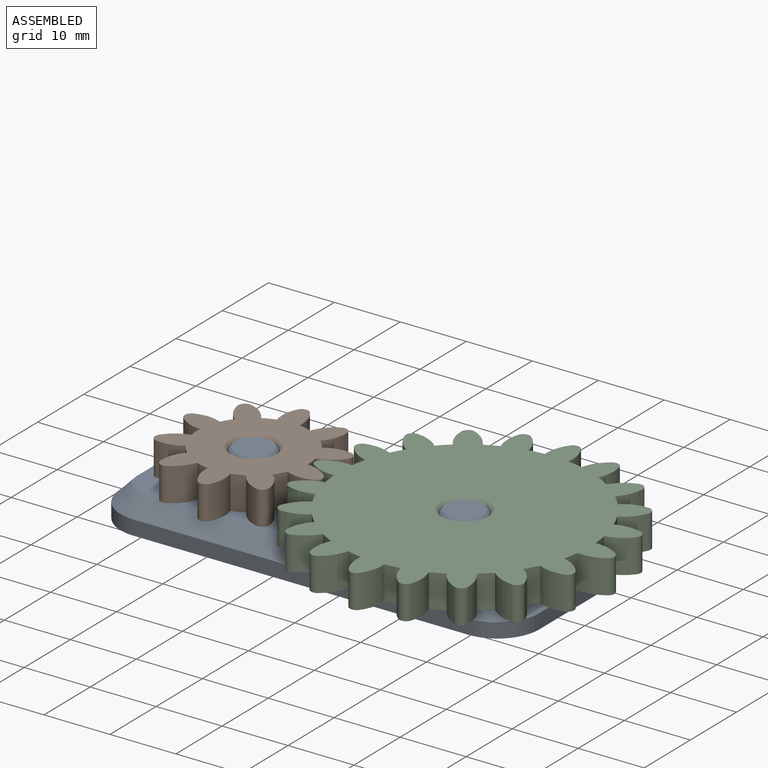
[diagram: assembled view]
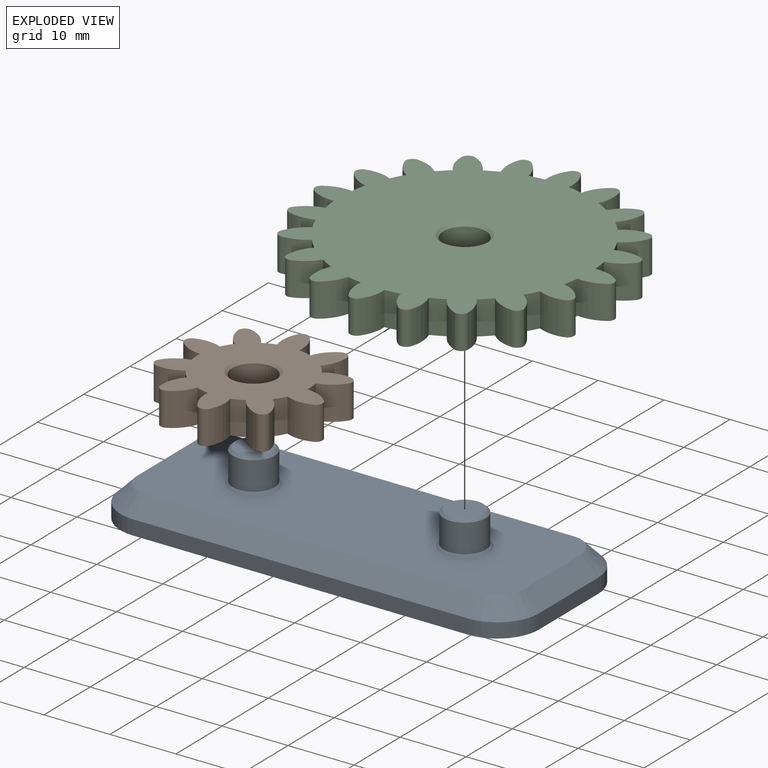
[diagram: exploded view]
GUIDED TOUR — MATED ASSEMBLY (Onshape document 20a0bea31f872cd8454d728e, AutoMate assembly 20a0bea31f872cd8454d728e_dc4022d6ba10b4418cf58766_7792a800c14be221876634a3_default)

This assembly has 3 components, labeled P0..P2 below (a component is one placed occurrence of a part; the same part can appear more than once), held together by 2 mates. A mate is a constraint between two components; its type names the relative motion it leaves free:
  REVOLUTE — leaves rotation about the listed axis free (a hinge).
Axis/direction vectors are unit vectors and 'through' points are millimeter coordinates, both in the assembly's world frame.

MATES
  1. REVOLUTE "Revolute 2": P2 <-> P0, axis (0.000, 0.000, -1.000) through (21.82, -0.05, 2.65) mm
  2. REVOLUTE "Revolute 1": P1 <-> P0, axis (0.000, 0.000, -1.000) through (-10.18, -0.05, 2.65) mm

ASSEMBLY ORDER
  1. P0 — the base component [order heuristic]
  2. P1 — core [order heuristic]
  3. P2 [order verified]
Order-tag legend:
  [order verified] — this step's position reverses a verified removal order: the component was checked to insert without passing through the ones already placed.
  [order heuristic] — the first 2 components form the assembly's core: parts whose collision-free extraction could not be verified, listed in mate-graph order.

Of the 3 components, 1 carries the full construction recipe — the FeatureScript program that regenerates the part's solid from scratch; the rest are supplied as boundary geometry only.
Each toured component is shown spotlighted twice — in the assembled view, then in the exploded view, where a leader line traces a displaced component back to its assembled socket (saturated green if recipe-attached, orange if geometry-only; every other component desaturated gray) — followed by its recipe or geometry summary and the mates that hold it.
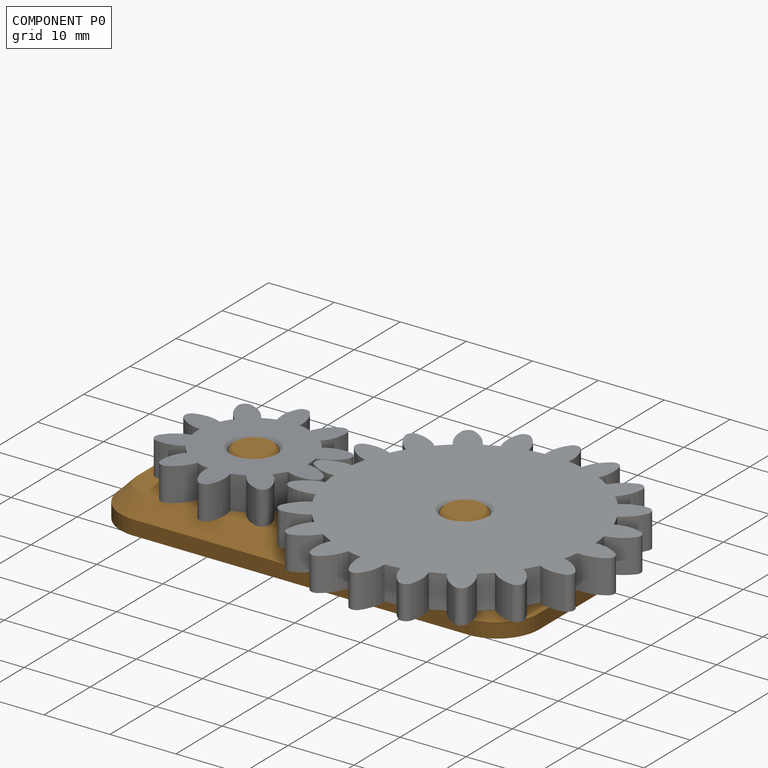
[diagram: component P0 — assembled]
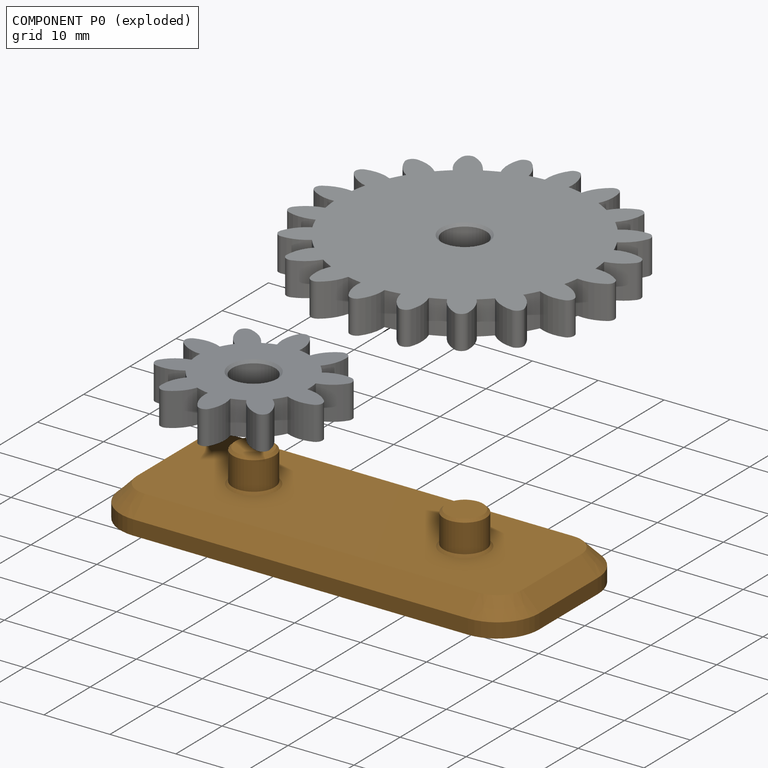
[diagram: component P0 — exploded]
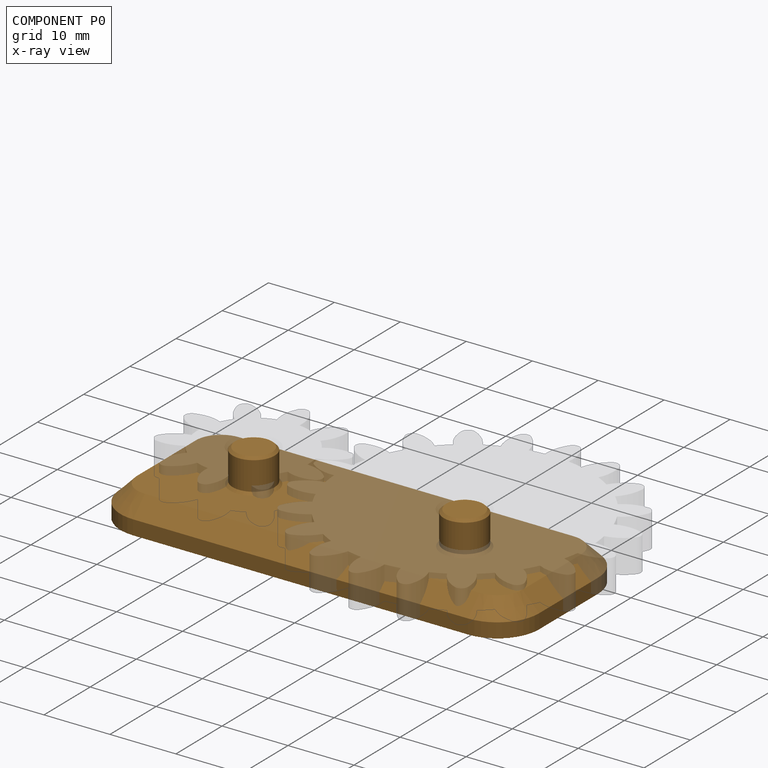
[diagram: component P0 — x-ray view]
COMPONENT P0 — geometry summary (no construction recipe available for this part):
  bounding box: 63.5 x 25.4 x 9.8 mm
  B-rep topology: 1 solid, 43 faces, 188 edges
  volume: 4789 mm^3 (30% of its bounding box)
  symmetry: 2-fold rotationally symmetric about the z axis; mirror-symmetric across its x mid-plane, y mid-plane
Held by: REVOLUTE mate "Revolute 2" to P2; REVOLUTE mate "Revolute 1" to P1.
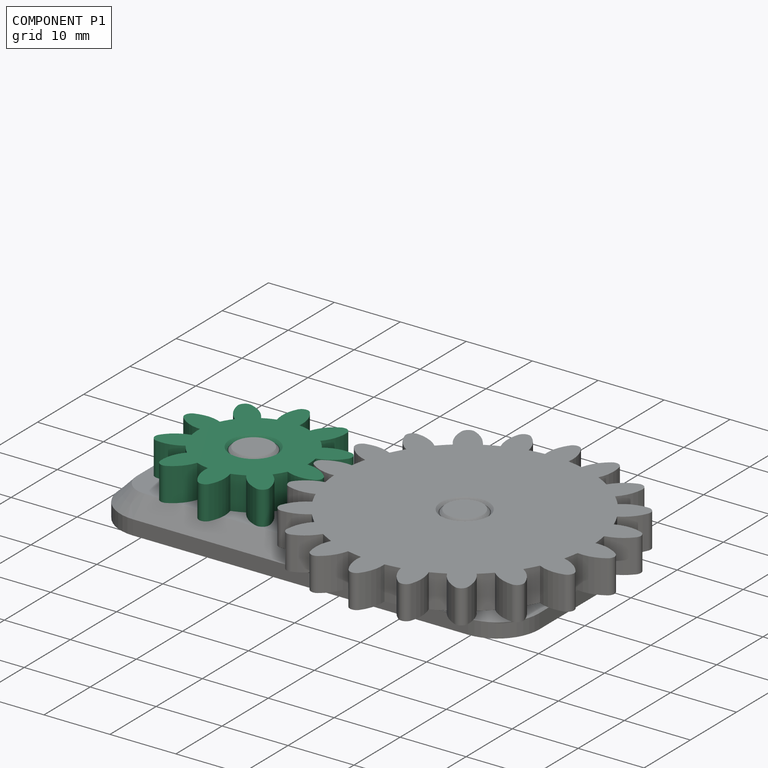
[diagram: component P1 — assembled]
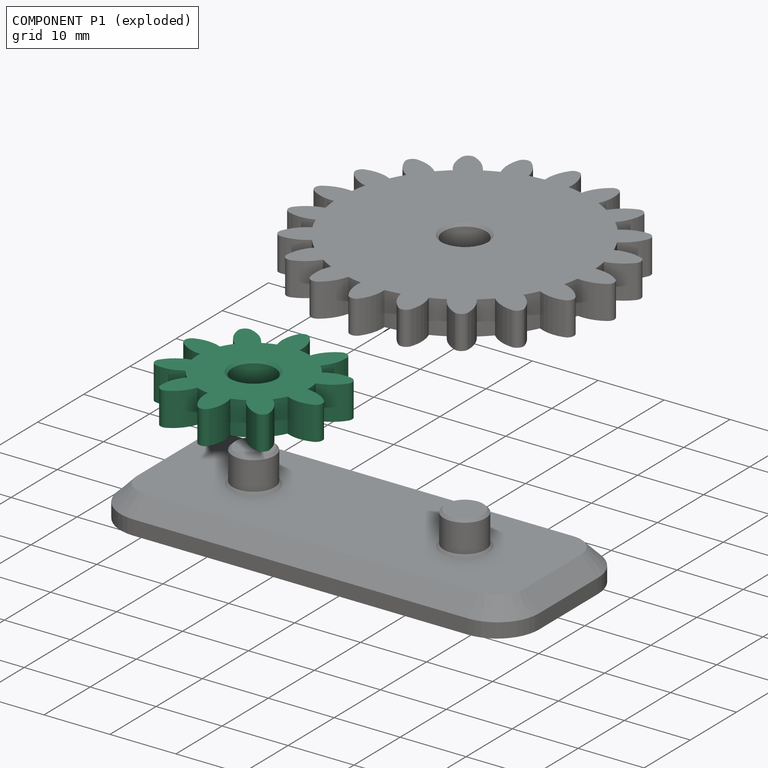
[diagram: component P1 — exploded]
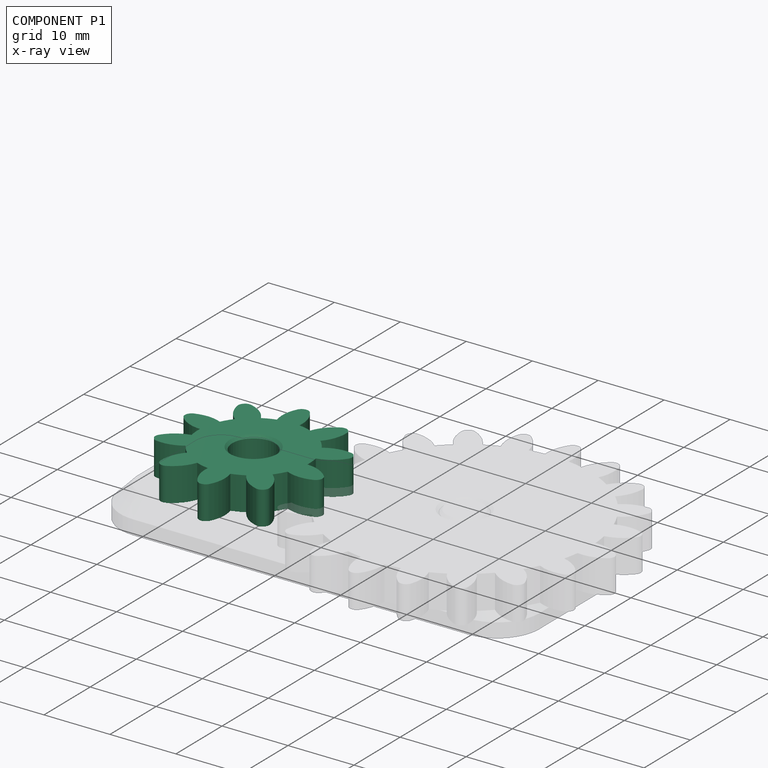
[diagram: component P1 — x-ray view]
COMPONENT P1 — recipe-attached (CADFS 00296584, mesh-verified: the recipe's output STEP matches this component's geometry to below the mesh-comparison resolution (tessellation chordal tolerance ~0.0538 mm)).
Held by: REVOLUTE mate "Revolute 1" to P0.
Construction recipe (FeatureScript — the CAD program that rebuilds this solid; sketch coordinates are in the units given by the * unit suffixes, e.g. mm):

FeatureScript 1540;
import(path : "onshape/std/geometry.fs", version : "1540.0");
import(path : "onshape/std/common.fs", version : "1540.0");
const mm = millimeter;
const VERTEX = EntityType.VERTEX;
const EDGE = EntityType.EDGE;
const FACE = EntityType.FACE;
const BODY = EntityType.BODY;
function v(x, y){return vector(x, y);}
function OD(order){return orderDisambiguation(order);}
function OSD(set){return originalSetDisambiguation(set);}
function TD(topology){return topologyDisambiguation(topology);}
function TDD(query){return trueDependencyDisambiguation(query);}
function sQuery(a, b, c) {return sketchEntityQuery(a, b, c);}

annotation { "Feature Type Name" : "Feature", "Feature Type Description" : "" }
export const myFeature = defineFeature(function(context is Context, id is Id, definition is map)
    precondition{}
    {
        {
            var Q0;
            Q0=qCreatedBy(makeId("Top.planeOp"),FACE);
            var sketch = newSketch(context, id + "F0", { "sketchPlane" : qUnion([Q0])});
            skCircle(sketch, "E0", {"center": v(0, 0) * mm, "radius": 8.47 * mm});
            skCircle(sketch, "E1", {"center": v(0, 0) * mm, "radius": 10.58 * mm, "construction": true});
            skArc(sketch, "E2", {"start": v(-1.99, 12.54) * mm, "mid": v(1.4, -12.62) * mm, "end": v(-0.8, 12.67) * mm, "construction": true});
            skLineSegment(sketch, "E3", {"start": v(0, 0) * mm, "end": v(0, 10.58) * mm, "construction": true});
            skLineSegment(sketch, "E4", {"start": v(0, 10.58) * mm, "end": v(-24.86, 10.58) * mm, "construction": true});
            skLineSegment(sketch, "E5", {"start": v(0, 10.58) * mm, "end": v(-24.73, 1.58) * mm, "construction": true});
            skArc(sketch, "E6", {"start": v(0.3, 8.46) * mm, "mid": v(0.04, 10.46) * mm, "end": v(-0.95, 12.2) * mm});
            skArc(sketch, "E7.MirrorCS", {"start": v(-2.9, 7.95) * mm, "mid": v(-3.2, 10) * mm, "end": v(-2.67, 11.99) * mm});
            skLineSegment(sketch, "E8", {"start": v(0, 0) * mm, "end": v(-1.99, 12.54) * mm, "construction": true});
            skLineSegment(sketch, "E9", {"start": v(-2.9, 7.95) * mm, "end": v(-1.32, 8.36) * mm, "construction": true});
            skLineSegment(sketch, "E10", {"start": v(0.3, 8.46) * mm, "end": v(-1.32, 8.36) * mm, "construction": true});
            skLineSegment(sketch, "E11", {"start": v(-1.58, 10) * mm, "end": v(5.36, 9.4) * mm, "construction": true});
            skArc(sketch, "E12", {"start": v(-0.95, 12.2) * mm, "mid": v(-1.87, 12.57) * mm, "end": v(-2.67, 11.99) * mm});
            skSolve(sketch);
        }
        {
            var Q0;
            Q0 = qSketchRegion(id + "F0", true);
            extrude(context, id + "F1", {"entities" : qUnion([Q0]), "flatOperationType" : FlatOperationType.REMOVE, "offsetDistance" : 25.4 * mm, "depth" : 5.08 * mm, "domain" : OperationDomain.MODEL});
        }
        {
            var Q0;
            Q0=makeQuery(id+"F1.opExtrude","SWEPT_FACE",FACE,{"disambiguationData":[OSD([sQuery(id+"F0.wireOp",EDGE,"E7.MirrorCS")])]});
            var Q1;
            Q1=makeQuery(id+"F1.opExtrude","SWEPT_FACE",FACE,{"disambiguationData":[OSD([sQuery(id+"F0.wireOp",EDGE,"E12")])]});
            var Q2;
            Q2=makeQuery(id+"F1.opExtrude","SWEPT_FACE",FACE,{"disambiguationData":[OSD([sQuery(id+"F0.wireOp",EDGE,"E6")])]});
            var Q3;
            Q3=makeQuery(id+"F1.opExtrude","SWEPT_FACE",FACE,{"disambiguationData":[OSD([sQuery(id+"F0.wireOp",EDGE,"E0")])]});
            circularPattern(context, id + "F2", {"patternType" : PatternType.FACE, "faces" : qUnion([Q0, Q1, Q2]), "axis" : qUnion([Q3]), "angle" : 360 * degree, "instanceCount" : 10, "equalSpace" : true, "fullFeaturePattern" : false});
        }
        {
            var Q0;
            Q0=makeQuery(id+"F1.opExtrude","CAP_FACE",FACE,{"disambiguationData":[OSD([sQuery(id+"F0.wireOp",EDGE,"E0"),sQuery(id+"F0.wireOp",EDGE,"E6"),sQuery(id+"F0.wireOp",EDGE,"E7.MirrorCS"),sQuery(id+"F0.wireOp",EDGE,"lxTbqiqL-FpUp-zF25-s7r9-AZY9gUb4hh0W")])],"isStart":false});
            var sketch = newSketch(context, id + "F3", { "sketchPlane" : qUnion([Q0])});
            skCircle(sketch, "E13", {"center": v(0, 0) * mm, "radius": 3.24 * mm});
            skSolve(sketch);
        }
        {
            var Q0;
            Q0 = qSketchRegion(id + "F3", true);
            extrude(context, id + "F4", {"entities" : qUnion([Q0]), "operationType" : NewBodyOperationType.REMOVE, "oppositeDirection" : true, "depth" : 25.4 * mm});
        }
        {
            var Q0;
            Q0=makeQuery(id+"F4.boolean.opBoolean","COPY",FACE,{"derivedFrom":makeQuery(id+"F4.opExtrude","SWEPT_FACE",FACE,{"disambiguationData":[OSD([sQuery(id+"F3.wireOp",EDGE,"E13")])]})});
            chamfer(context, id + "F5", {"entities" : qUnion([Q0]), "width" : 0.38 * mm, "tangentPropagation" : true});
        }
    });
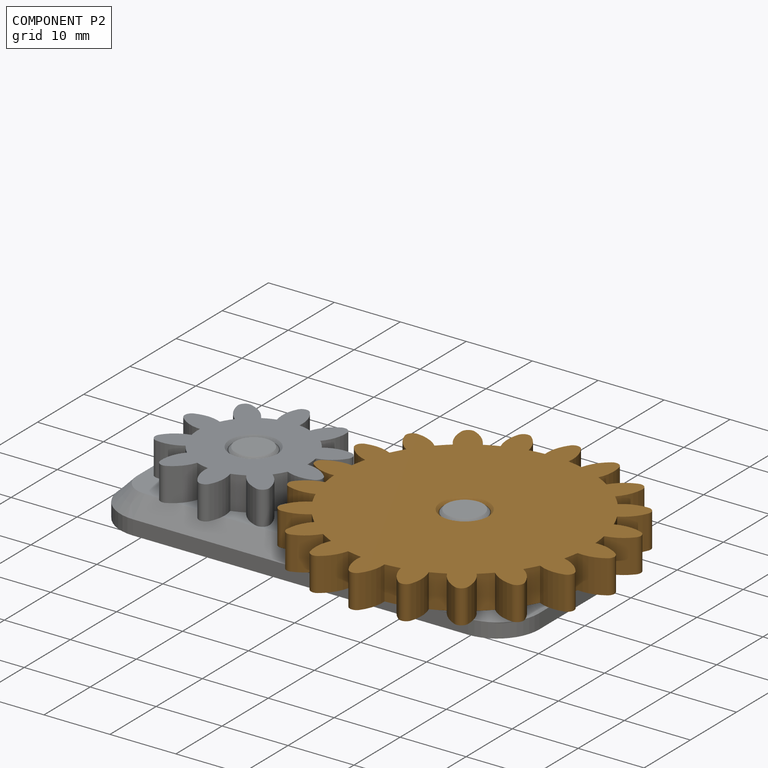
[diagram: component P2 — assembled]
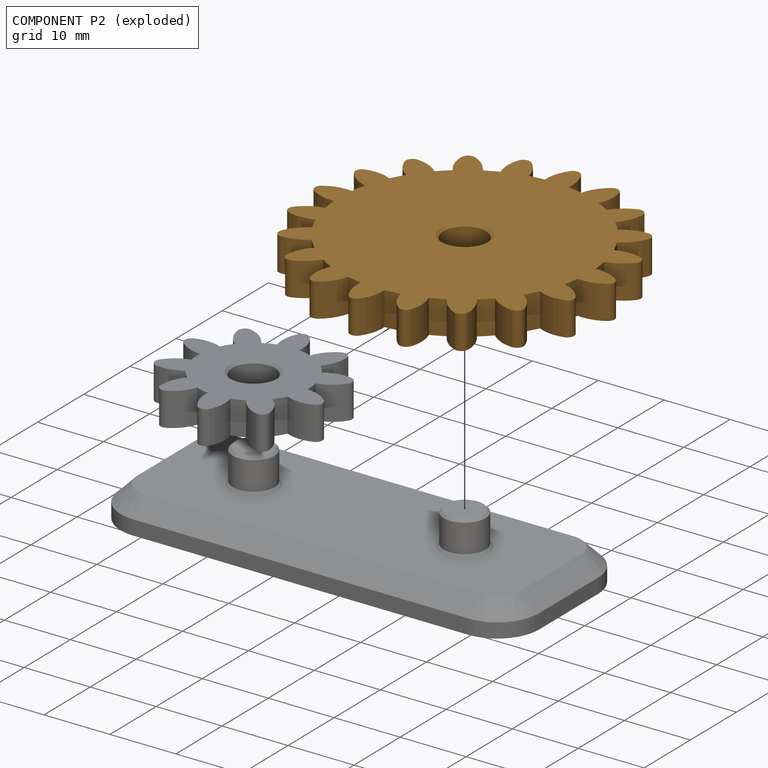
[diagram: component P2 — exploded]
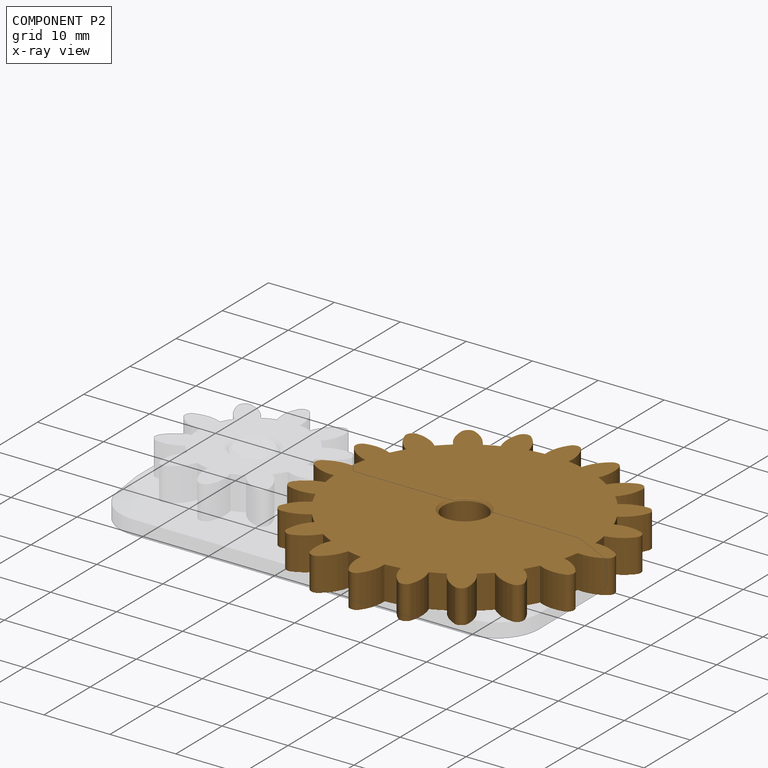
[diagram: component P2 — x-ray view]
COMPONENT P2 — geometry summary (no construction recipe available for this part):
  bounding box: 46.4 x 46.4 x 5.1 mm
  B-rep topology: 1 solid, 85 faces, 494 edges
  volume: 6907 mm^3 (63% of its bounding box)
  symmetry: 4-fold rotationally symmetric about the z axis; mirror-symmetric across its z mid-plane
Held by: REVOLUTE mate "Revolute 2" to P0.
PROVENANCE & LICENSES
Assembly (occurrences, transforms, mates, per-part STEP geometry): AutoMate dataset, Zenodo record 7776208, CC0.
Construction recipes: CADFS (HuggingFace VladPyatov/CADFS, CC-BY-4.0, layered over the ABC dataset), FeatureScript reconstruction programs keyed by ABC model id.
Join: ABC meta listings map ABC model id -> Onshape documentId; within a shared document, parts are matched by geometric signature (bounding-box dims + volume at 0.1% relative tolerance, exact B-rep face/solid counts).
Verification: 1 of this assembly's 3 components carries a recipe attachment, and every attachment is mesh-verified: the CADFS STEP and the AutoMate member STEP were compared as meshes in their shared local frame (symmetric sampled-point-to-mesh distance); worst across the 1 attachment: below the mesh-comparison resolution (tessellation chordal tolerance ~0.0538 mm) on a 36 mm part.
Renders: orthographic iso camera (az 35 / el 25); the floor grid conveys scale (grid pitch printed in each image; no ruler). In the exploded view each component is displaced by its stored offset vector: the offsets alone carry the explosion direction (mate normal/axis signs are not orientation cues and do not encode it), and separation distances are assigned per mate-chain, not proportionally to assembly-order depth.
